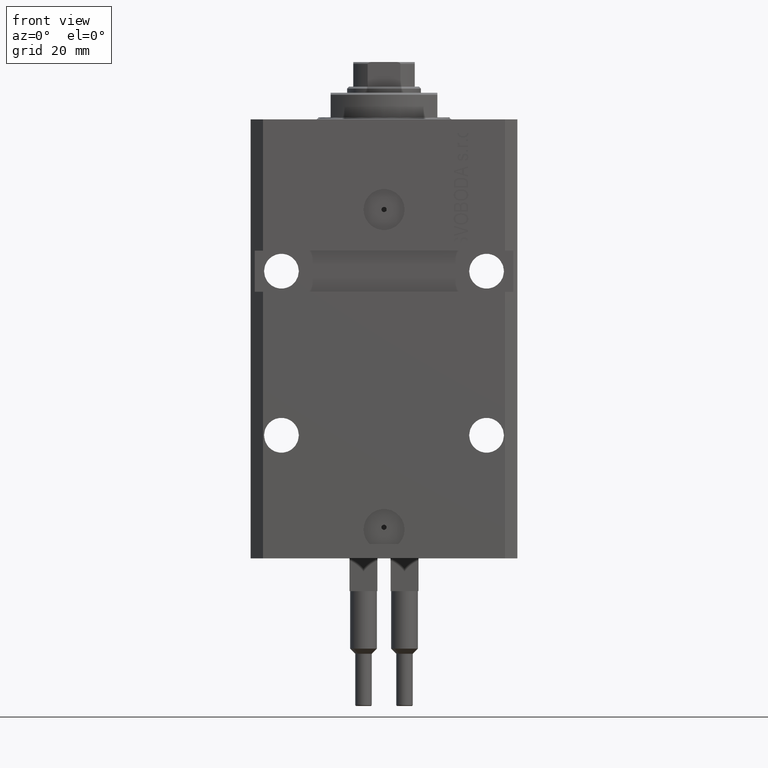
[diagram: clean part render]
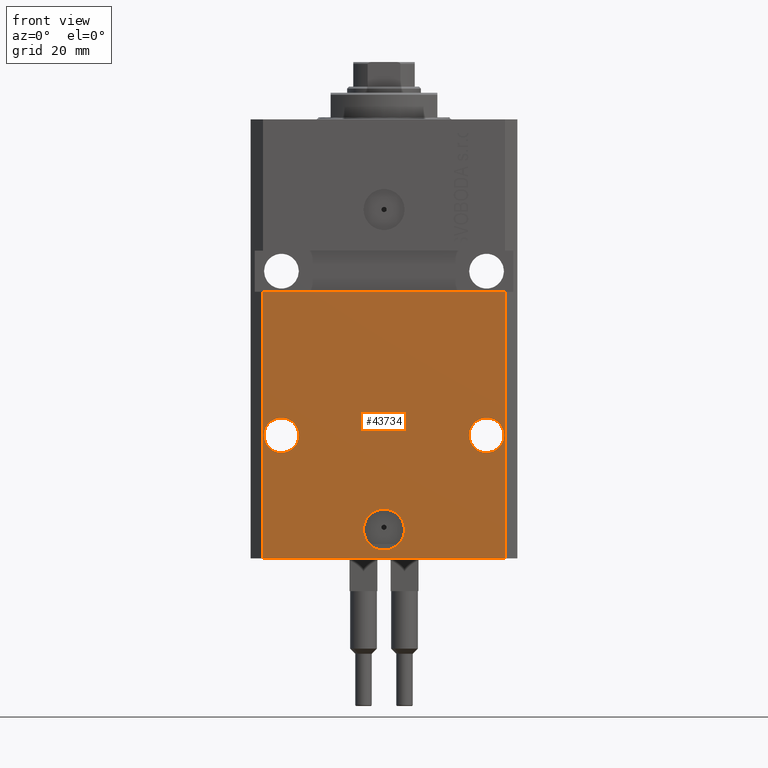
[diagram: same view with one face highlighted and labeled with its STEP entity id]
A machine part, front view. The second image highlights one B-rep face of the part: STEP entity #43734.
In plain terms, the highlighted planar face has unit normal (0, -1, 0).
Its self-contained STEP definition (entity closure, byte-faithful):
#166 = EDGE_CURVE ( 'NONE', #25523, #48261, #15707, .T. ) ;
#174 = VERTEX_POINT ( 'NONE', #48950 ) ;
#398 = DIRECTION ( 'NONE',  ( 1.000000000000000000, 1.067522139062765303E-16, 1.067522139062765303E-16 ) ) ;
#502 = AXIS2_PLACEMENT_3D ( 'NONE', #45346, #3912, #22774 ) ;
#513 = CIRCLE ( 'NONE', #46449, 5.000000000000006217 ) ;
#1766 = VERTEX_POINT ( 'NONE', #32494 ) ;
#2626 = EDGE_CURVE ( 'NONE', #11171, #43586, #42554, .T. ) ;
#3227 = AXIS2_PLACEMENT_3D ( 'NONE', #4897, #31209, #12335 ) ;
#3231 = DIRECTION ( 'NONE',  ( 0.000000000000000000, 0.000000000000000000, 1.000000000000000000 ) ) ;
#3547 = FACE_OUTER_BOUND ( 'NONE', #29102, .T. ) ;
#3912 = DIRECTION ( 'NONE',  ( 1.176083712526788232E-16, -1.000000000000000000, 0.000000000000000000 ) ) ;
#4346 = EDGE_LOOP ( 'NONE', ( #21483, #41440 ) ) ;
#4547 = EDGE_CURVE ( 'NONE', #43586, #11171, #28318, .T. ) ;
#4897 = CARTESIAN_POINT ( 'NONE',  ( 25.00000000000000711, -22.49999999999949196, -76.99999999999998579 ) ) ;
#7606 = VERTEX_POINT ( 'NONE', #29524 ) ;
#7789 = EDGE_CURVE ( 'NONE', #16009, #7606, #14872, .T. ) ;
#8183 = EDGE_CURVE ( 'NONE', #7606, #48261, #34406, .T. ) ;
#8500 = VECTOR ( 'NONE', #45472, 1000.000000000000000 ) ;
#8502 = DIRECTION ( 'NONE',  ( 1.176083712526788232E-16, -1.000000000000000000, 0.000000000000000000 ) ) ;
#9690 = CARTESIAN_POINT ( 'NONE',  ( 2.646188353185214061E-15, -22.49999999999949551, -99.99999999999998579 ) ) ;
#9710 = CARTESIAN_POINT ( 'NONE',  ( -29.24999999997659472, -22.49999999999949907, -76.99999999999998579 ) ) ;
#10000 = CARTESIAN_POINT ( 'NONE',  ( -5.000000000000003553, -22.49999999999949551, -99.99999999999998579 ) ) ;
#10849 = ORIENTED_EDGE ( 'NONE', *, *, #40566, .T. ) ;
#11171 = VERTEX_POINT ( 'NONE', #9710 ) ;
#12335 = DIRECTION ( 'NONE',  ( 1.000000000000000000, 0.000000000000000000, 0.000000000000000000 ) ) ;
#13427 = EDGE_CURVE ( 'NONE', #1766, #15315, #23016, .T. ) ;
#14872 = LINE ( 'NONE', #26293, #29277 ) ;
#15315 = VERTEX_POINT ( 'NONE', #31403 ) ;
#15430 = ORIENTED_EDGE ( 'NONE', *, *, #7789, .F. ) ;
#15707 = LINE ( 'NONE', #42492, #8500 ) ;
#16009 = VERTEX_POINT ( 'NONE', #23110 ) ;
#16031 = AXIS2_PLACEMENT_3D ( 'NONE', #31897, #16526, #20727 ) ;
#16526 = DIRECTION ( 'NONE',  ( 1.176083712526788232E-16, -1.000000000000000000, 0.000000000000000000 ) ) ;
#16670 = ORIENTED_EDGE ( 'NONE', *, *, #31558, .F. ) ;
#16793 = ORIENTED_EDGE ( 'NONE', *, *, #21001, .F. ) ;
#18663 = PLANE ( 'NONE',  #20476 ) ;
#19496 = CARTESIAN_POINT ( 'NONE',  ( -32.49999999999650413, -22.49999999999949907, -41.99999999999999289 ) ) ;
#19890 = VERTEX_POINT ( 'NONE', #10000 ) ;
#20137 = DIRECTION ( 'NONE',  ( 1.000000000000000000, 1.176083712526788232E-16, 0.000000000000000000 ) ) ;
#20397 = CARTESIAN_POINT ( 'NONE',  ( -25.00000000000000000, -22.49999999999949907, -76.99999999999998579 ) ) ;
#20476 = AXIS2_PLACEMENT_3D ( 'NONE', #33814, #48930, #27838 ) ;
#20727 = DIRECTION ( 'NONE',  ( 1.000000000000000000, 0.000000000000000000, 0.000000000000000000 ) ) ;
#21001 = EDGE_CURVE ( 'NONE', #19890, #174, #36605, .T. ) ;
#21483 = ORIENTED_EDGE ( 'NONE', *, *, #4547, .F. ) ;
#22537 = CARTESIAN_POINT ( 'NONE',  ( 29.49999999999650413, -22.49999999999949196, -107.0000000000000000 ) ) ;
#22774 = DIRECTION ( 'NONE',  ( 1.000000000000000000, 0.000000000000000000, 0.000000000000000000 ) ) ;
#23016 = CIRCLE ( 'NONE', #3227, 4.249999999989057642 ) ;
#23110 = CARTESIAN_POINT ( 'NONE',  ( -29.49999999999650413, -22.49999999999949907, -107.0000000000000000 ) ) ;
#23632 = DIRECTION ( 'NONE',  ( -1.000000000000000000, 0.000000000000000000, 0.000000000000000000 ) ) ;
#24829 = DIRECTION ( 'NONE',  ( 1.000000000000000000, 0.000000000000000000, 0.000000000000000000 ) ) ;
#25523 = VERTEX_POINT ( 'NONE', #22537 ) ;
#26128 = FACE_BOUND ( 'NONE', #4346, .T. ) ;
#26293 = CARTESIAN_POINT ( 'NONE',  ( -29.49999999999650413, -22.49999999999949907, -107.0000000000000000 ) ) ;
#26733 = VECTOR ( 'NONE', #20137, 1000.000000000000000 ) ;
#26857 = CARTESIAN_POINT ( 'NONE',  ( -20.75000000002340883, -22.49999999999949907, -76.99999999999998579 ) ) ;
#26902 = VECTOR ( 'NONE', #398, 1000.000000000000000 ) ;
#27582 = AXIS2_PLACEMENT_3D ( 'NONE', #42481, #8502, #23632 ) ;
#27838 = DIRECTION ( 'NONE',  ( 1.000000000000000000, 1.176083712526788232E-16, 0.000000000000000000 ) ) ;
#28236 = CIRCLE ( 'NONE', #502, 4.249999999989057642 ) ;
#28318 = CIRCLE ( 'NONE', #27582, 4.249999999976592058 ) ;
#29102 = EDGE_LOOP ( 'NONE', ( #34571, #15430, #10849, #45949 ) ) ;
#29277 = VECTOR ( 'NONE', #3231, 1000.000000000000000 ) ;
#29524 = CARTESIAN_POINT ( 'NONE',  ( -29.49999999999650413, -22.49999999999949907, -41.99999999999999289 ) ) ;
#31209 = DIRECTION ( 'NONE',  ( 1.176083712526788232E-16, -1.000000000000000000, 0.000000000000000000 ) ) ;
#31403 = CARTESIAN_POINT ( 'NONE',  ( 29.24999999998906475, -22.49999999999949196, -76.99999999999998579 ) ) ;
#31558 = EDGE_CURVE ( 'NONE', #15315, #1766, #28236, .T. ) ;
#31897 = CARTESIAN_POINT ( 'NONE',  ( 2.646188353185214061E-15, -22.49999999999949551, -99.99999999999998579 ) ) ;
#32218 = ORIENTED_EDGE ( 'NONE', *, *, #13427, .F. ) ;
#32494 = CARTESIAN_POINT ( 'NONE',  ( 20.75000000001094946, -22.49999999999949196, -76.99999999999998579 ) ) ;
#33814 = CARTESIAN_POINT ( 'NONE',  ( -29.49999999999650413, -22.49999999999949907, -107.0000000000000000 ) ) ;
#34406 = LINE ( 'NONE', #19496, #26902 ) ;
#34571 = ORIENTED_EDGE ( 'NONE', *, *, #8183, .F. ) ;
#35543 = DIRECTION ( 'NONE',  ( -1.000000000000000000, 0.000000000000000000, 0.000000000000000000 ) ) ;
#36475 = DIRECTION ( 'NONE',  ( 1.176083712526788232E-16, -1.000000000000000000, 0.000000000000000000 ) ) ;
#36605 = CIRCLE ( 'NONE', #16031, 5.000000000000006217 ) ;
#37593 = LINE ( 'NONE', #38996, #26733 ) ;
#38139 = EDGE_CURVE ( 'NONE', #174, #19890, #513, .T. ) ;
#38501 = FACE_BOUND ( 'NONE', #42678, .T. ) ;
#38996 = CARTESIAN_POINT ( 'NONE',  ( -29.49999999999650413, -22.49999999999949907, -107.0000000000000000 ) ) ;
#40566 = EDGE_CURVE ( 'NONE', #16009, #25523, #37593, .T. ) ;
#41440 = ORIENTED_EDGE ( 'NONE', *, *, #2626, .F. ) ;
#42481 = CARTESIAN_POINT ( 'NONE',  ( -25.00000000000000000, -22.49999999999949907, -76.99999999999998579 ) ) ;
#42492 = CARTESIAN_POINT ( 'NONE',  ( 29.49999999999650413, -22.49999999999949196, -107.0000000000000000 ) ) ;
#42554 = CIRCLE ( 'NONE', #43329, 4.249999999976592058 ) ;
#42678 = EDGE_LOOP ( 'NONE', ( #43735, #16793 ) ) ;
#43220 = DIRECTION ( 'NONE',  ( 1.176083712526788232E-16, -1.000000000000000000, 0.000000000000000000 ) ) ;
#43329 = AXIS2_PLACEMENT_3D ( 'NONE', #20397, #43220, #35543 ) ;
#43586 = VERTEX_POINT ( 'NONE', #26857 ) ;
#43734 = ADVANCED_FACE ( 'NONE', ( #38501, #48686, #26128, #3547 ), #18663, .T. ) ;
#43735 = ORIENTED_EDGE ( 'NONE', *, *, #38139, .F. ) ;
#44433 = CARTESIAN_POINT ( 'NONE',  ( 29.49999999999650058, -22.49999999999949196, -41.99999999999998579 ) ) ;
#45346 = CARTESIAN_POINT ( 'NONE',  ( 25.00000000000000711, -22.49999999999949196, -76.99999999999998579 ) ) ;
#45472 = DIRECTION ( 'NONE',  ( 0.000000000000000000, 0.000000000000000000, 1.000000000000000000 ) ) ;
#45949 = ORIENTED_EDGE ( 'NONE', *, *, #166, .T. ) ;
#46449 = AXIS2_PLACEMENT_3D ( 'NONE', #9690, #36475, #24829 ) ;
#47486 = EDGE_LOOP ( 'NONE', ( #16670, #32218 ) ) ;
#48261 = VERTEX_POINT ( 'NONE', #44433 ) ;
#48686 = FACE_BOUND ( 'NONE', #47486, .T. ) ;
#48930 = DIRECTION ( 'NONE',  ( 1.176083712526788232E-16, -1.000000000000000000, 0.000000000000000000 ) ) ;
#48950 = CARTESIAN_POINT ( 'NONE',  ( 5.000000000000008882, -22.49999999999949551, -99.99999999999998579 ) ) ;